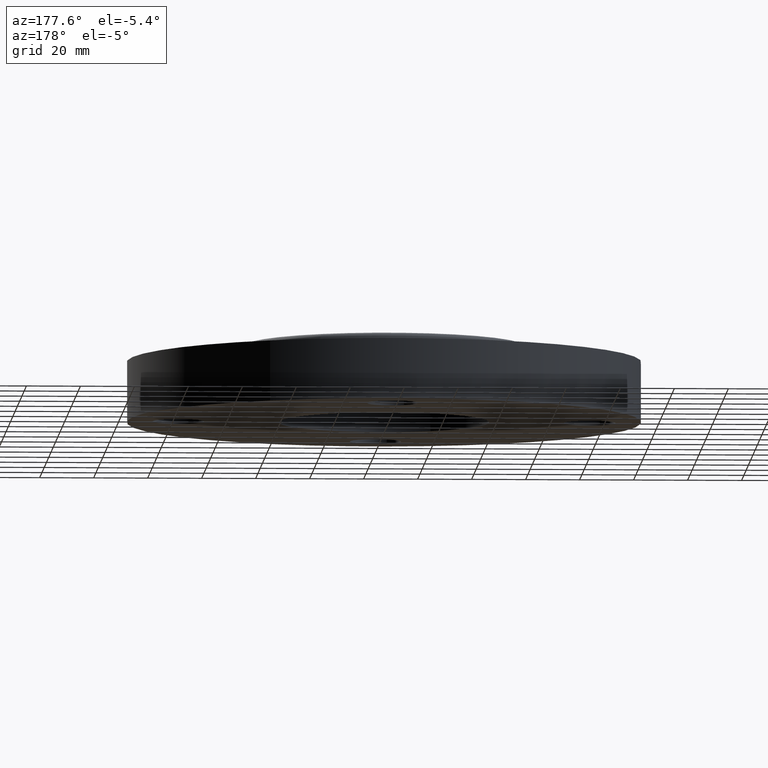
[diagram: clean part render]
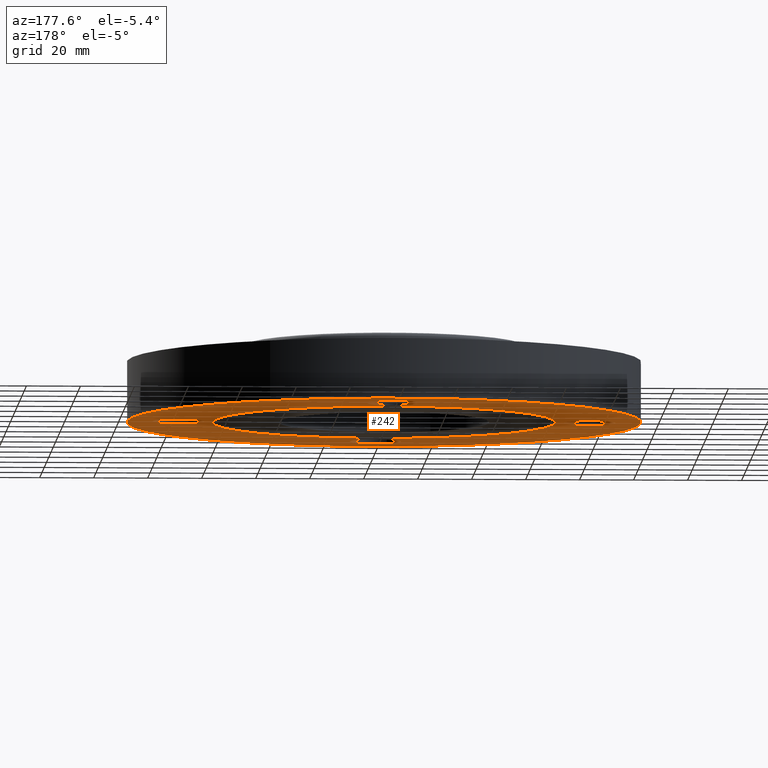
[diagram: same view with one face highlighted and labeled with its STEP entity id]
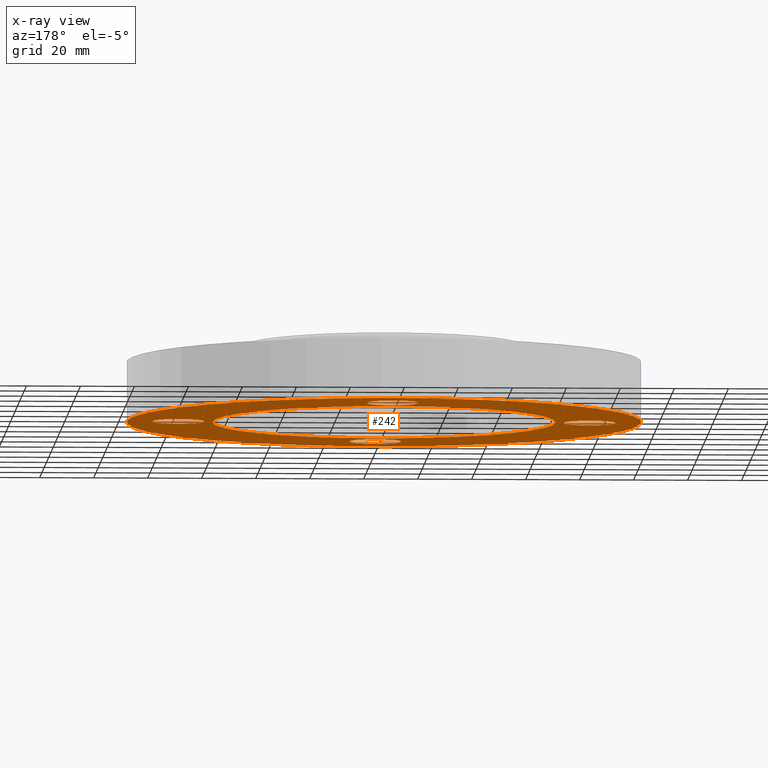
[diagram: x-ray of the same camera — body ghosted, the highlighted face saturated]
A machine part, auxiliary view. The second image highlights one B-rep face of the part: STEP entity #242.
The next image is the same camera in x-ray: the body ghosted, the highlighted face saturated — about 0% of this face is hidden behind the body in this view.
In plain terms, the highlighted planar face has unit normal (0, 0, -1).
Its self-contained STEP definition (entity closure, byte-faithful):
#123=AXIS2_PLACEMENT_3D('Plane Axis2P3D',#120,#121,#122) ;
#127=AXIS2_PLACEMENT_3D('Circle Axis2P3D',#125,#126,$) ;
#136=AXIS2_PLACEMENT_3D('Circle Axis2P3D',#134,#135,$) ;
#150=AXIS2_PLACEMENT_3D('Circle Axis2P3D',#148,#149,$) ;
#159=AXIS2_PLACEMENT_3D('Circle Axis2P3D',#157,#158,$) ;
#168=AXIS2_PLACEMENT_3D('Circle Axis2P3D',#166,#167,$) ;
#177=AXIS2_PLACEMENT_3D('Circle Axis2P3D',#175,#176,$) ;
#190=AXIS2_PLACEMENT_3D('Circle Axis2P3D',#188,#189,$) ;
#199=AXIS2_PLACEMENT_3D('Circle Axis2P3D',#197,#198,$) ;
#208=AXIS2_PLACEMENT_3D('Circle Axis2P3D',#206,#207,$) ;
#217=AXIS2_PLACEMENT_3D('Circle Axis2P3D',#215,#216,$) ;
#226=AXIS2_PLACEMENT_3D('Circle Axis2P3D',#224,#225,$) ;
#235=AXIS2_PLACEMENT_3D('Circle Axis2P3D',#233,#234,$) ;
#120=CARTESIAN_POINT('Axis2P3D Location',(0.,1.53400000001,0.)) ;
#125=CARTESIAN_POINT('Axis2P3D Location',(0.,0.,0.)) ;
#129=CARTESIAN_POINT('Vertex',(-1.19856384652,-2.19395640473,0.)) ;
#131=CARTESIAN_POINT('Vertex',(1.19856384652,2.19395640473,0.)) ;
#134=CARTESIAN_POINT('Axis2P3D Location',(0.,0.,0.)) ;
#148=CARTESIAN_POINT('Axis2P3D Location',(0.,0.,0.)) ;
#152=CARTESIAN_POINT('Vertex',(-1.79784576977,-3.2909346071,3.49676543189E-016)) ;
#154=CARTESIAN_POINT('Vertex',(1.79784576977,3.2909346071,3.49676543189E-016)) ;
#157=CARTESIAN_POINT('Axis2P3D Location',(0.,0.,0.)) ;
#166=CARTESIAN_POINT('Axis2P3D Location',(3.00000000001,0.,0.)) ;
#170=CARTESIAN_POINT('Vertex',(3.32909346072,-0.179784576977,0.)) ;
#172=CARTESIAN_POINT('Vertex',(2.6709065393,0.179784576977,0.)) ;
#175=CARTESIAN_POINT('Axis2P3D Location',(3.00000000001,2.79741234551E-016,0.)) ;
#188=CARTESIAN_POINT('Axis2P3D Location',(-3.1470888887E-016,-3.00000000001,0.)) ;
#192=CARTESIAN_POINT('Vertex',(0.179784576977,-2.6709065393,0.)) ;
#194=CARTESIAN_POINT('Vertex',(-0.179784576977,-3.32909346072,0.)) ;
#197=CARTESIAN_POINT('Axis2P3D Location',(-3.84644197508E-016,-3.00000000001,0.)) ;
#206=CARTESIAN_POINT('Axis2P3D Location',(-3.00000000001,-2.79741234551E-016,0.)) ;
#210=CARTESIAN_POINT('Vertex',(-2.6709065393,-0.179784576977,0.)) ;
#212=CARTESIAN_POINT('Vertex',(-3.32909346072,0.179784576977,0.)) ;
#215=CARTESIAN_POINT('Axis2P3D Location',(-3.00000000001,-5.59482469102E-016,0.)) ;
#224=CARTESIAN_POINT('Axis2P3D Location',(-6.2941777774E-016,3.00000000001,0.)) ;
#228=CARTESIAN_POINT('Vertex',(-0.179784576977,2.6709065393,0.)) ;
#230=CARTESIAN_POINT('Vertex',(0.179784576977,3.32909346072,0.)) ;
#233=CARTESIAN_POINT('Axis2P3D Location',(-5.59482469102E-016,3.00000000001,0.)) ;
#121=DIRECTION('Axis2P3D Direction',(0.,0.,-0.0393700787402)) ;
#122=DIRECTION('Axis2P3D XDirection',(0.0393700787402,0.,0.)) ;
#126=DIRECTION('Axis2P3D Direction',(0.,0.,-0.0393700787402)) ;
#135=DIRECTION('Axis2P3D Direction',(0.,0.,-0.0393700787402)) ;
#149=DIRECTION('Axis2P3D Direction',(0.,0.,-0.0393700787402)) ;
#158=DIRECTION('Axis2P3D Direction',(0.,0.,-0.0393700787402)) ;
#167=DIRECTION('Axis2P3D Direction',(0.,0.,-0.0393700787402)) ;
#176=DIRECTION('Axis2P3D Direction',(0.,0.,-0.0393700787402)) ;
#189=DIRECTION('Axis2P3D Direction',(0.,0.,-0.0393700787402)) ;
#198=DIRECTION('Axis2P3D Direction',(0.,0.,-0.0393700787402)) ;
#207=DIRECTION('Axis2P3D Direction',(0.,0.,-0.0393700787402)) ;
#216=DIRECTION('Axis2P3D Direction',(0.,0.,-0.0393700787402)) ;
#225=DIRECTION('Axis2P3D Direction',(0.,0.,-0.0393700787402)) ;
#234=DIRECTION('Axis2P3D Direction',(0.,0.,-0.0393700787402)) ;
#163=ORIENTED_EDGE('',*,*,#156,.T.) ;
#164=ORIENTED_EDGE('',*,*,#161,.T.) ;
#181=ORIENTED_EDGE('',*,*,#174,.F.) ;
#182=ORIENTED_EDGE('',*,*,#179,.F.) ;
#185=ORIENTED_EDGE('',*,*,#138,.F.) ;
#186=ORIENTED_EDGE('',*,*,#133,.F.) ;
#203=ORIENTED_EDGE('',*,*,#196,.F.) ;
#204=ORIENTED_EDGE('',*,*,#201,.F.) ;
#221=ORIENTED_EDGE('',*,*,#214,.F.) ;
#222=ORIENTED_EDGE('',*,*,#219,.F.) ;
#239=ORIENTED_EDGE('',*,*,#232,.F.) ;
#240=ORIENTED_EDGE('',*,*,#237,.F.) ;
#183=FACE_BOUND('',#180,.T.) ;
#187=FACE_BOUND('',#184,.T.) ;
#205=FACE_BOUND('',#202,.T.) ;
#223=FACE_BOUND('',#220,.T.) ;
#241=FACE_BOUND('',#238,.T.) ;
#242=ADVANCED_FACE('PartBody',(#165,#183,#187,#205,#223,#241),#124,.T.) ;
#128=CIRCLE('generated circle',#127,2.50000000001) ;
#137=CIRCLE('generated circle',#136,2.50000000001) ;
#151=CIRCLE('generated circle',#150,3.75000000002) ;
#160=CIRCLE('generated circle',#159,3.75000000002) ;
#169=CIRCLE('generated circle',#168,0.375000000002) ;
#178=CIRCLE('generated circle',#177,0.375000000002) ;
#191=CIRCLE('generated circle',#190,0.375000000002) ;
#200=CIRCLE('generated circle',#199,0.375000000002) ;
#209=CIRCLE('generated circle',#208,0.375000000001) ;
#218=CIRCLE('generated circle',#217,0.375000000001) ;
#227=CIRCLE('generated circle',#226,0.375000000002) ;
#236=CIRCLE('generated circle',#235,0.375000000002) ;
#133=EDGE_CURVE('',#130,#132,#128,.T.) ;
#138=EDGE_CURVE('',#132,#130,#137,.T.) ;
#156=EDGE_CURVE('',#153,#155,#151,.T.) ;
#161=EDGE_CURVE('',#155,#153,#160,.T.) ;
#174=EDGE_CURVE('',#171,#173,#169,.T.) ;
#179=EDGE_CURVE('',#173,#171,#178,.T.) ;
#196=EDGE_CURVE('',#193,#195,#191,.T.) ;
#201=EDGE_CURVE('',#195,#193,#200,.T.) ;
#214=EDGE_CURVE('',#211,#213,#209,.T.) ;
#219=EDGE_CURVE('',#213,#211,#218,.T.) ;
#232=EDGE_CURVE('',#229,#231,#227,.T.) ;
#237=EDGE_CURVE('',#231,#229,#236,.T.) ;
#162=EDGE_LOOP('',(#163,#164)) ;
#180=EDGE_LOOP('',(#181,#182)) ;
#184=EDGE_LOOP('',(#185,#186)) ;
#202=EDGE_LOOP('',(#203,#204)) ;
#220=EDGE_LOOP('',(#221,#222)) ;
#238=EDGE_LOOP('',(#239,#240)) ;
#165=FACE_OUTER_BOUND('',#162,.T.) ;
#124=PLANE('',#123) ;
#130=VERTEX_POINT('',#129) ;
#132=VERTEX_POINT('',#131) ;
#153=VERTEX_POINT('',#152) ;
#155=VERTEX_POINT('',#154) ;
#171=VERTEX_POINT('',#170) ;
#173=VERTEX_POINT('',#172) ;
#193=VERTEX_POINT('',#192) ;
#195=VERTEX_POINT('',#194) ;
#211=VERTEX_POINT('',#210) ;
#213=VERTEX_POINT('',#212) ;
#229=VERTEX_POINT('',#228) ;
#231=VERTEX_POINT('',#230) ;